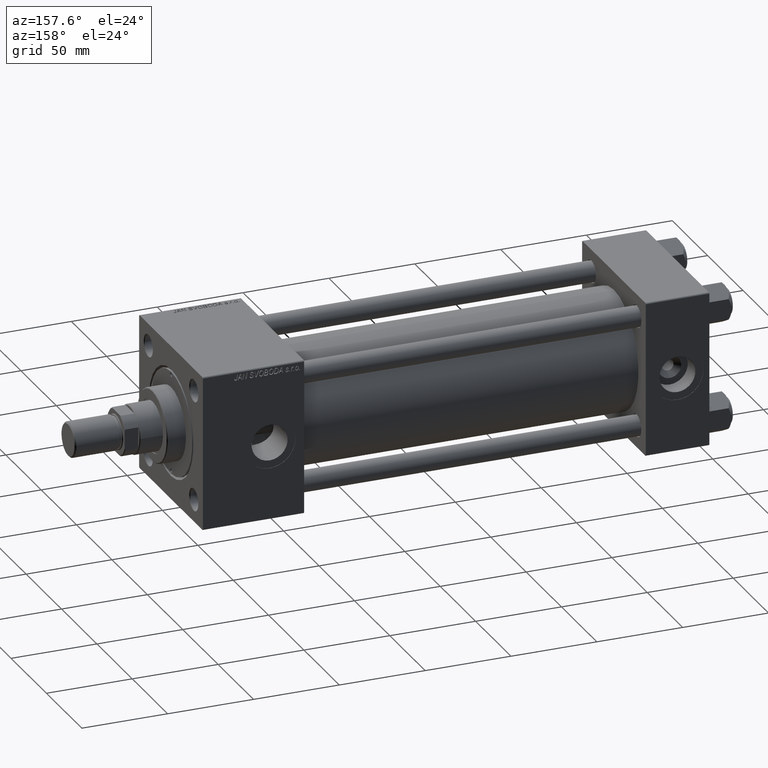
[diagram: clean part render]
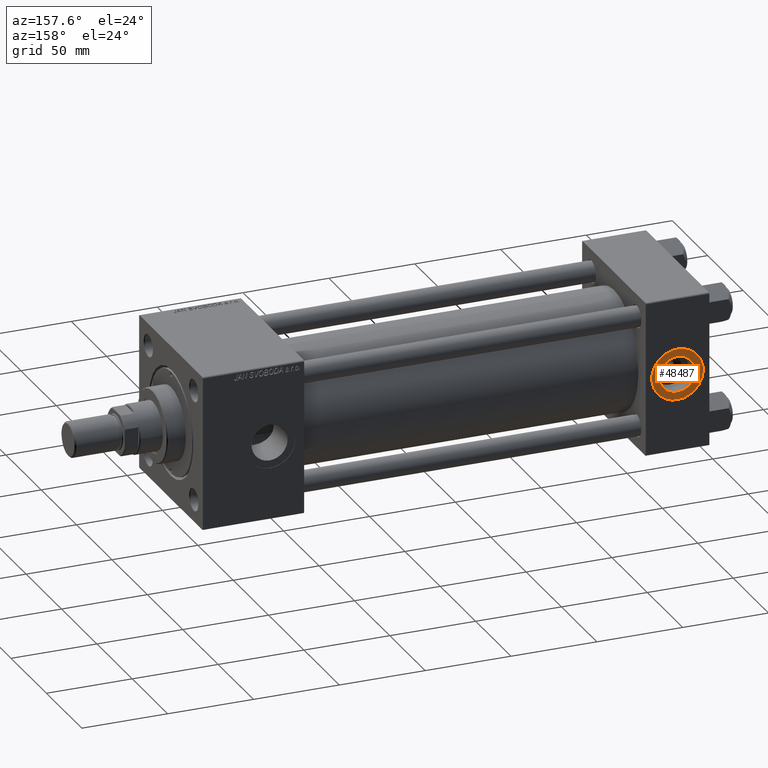
[diagram: same view with one face highlighted and labeled with its STEP entity id]
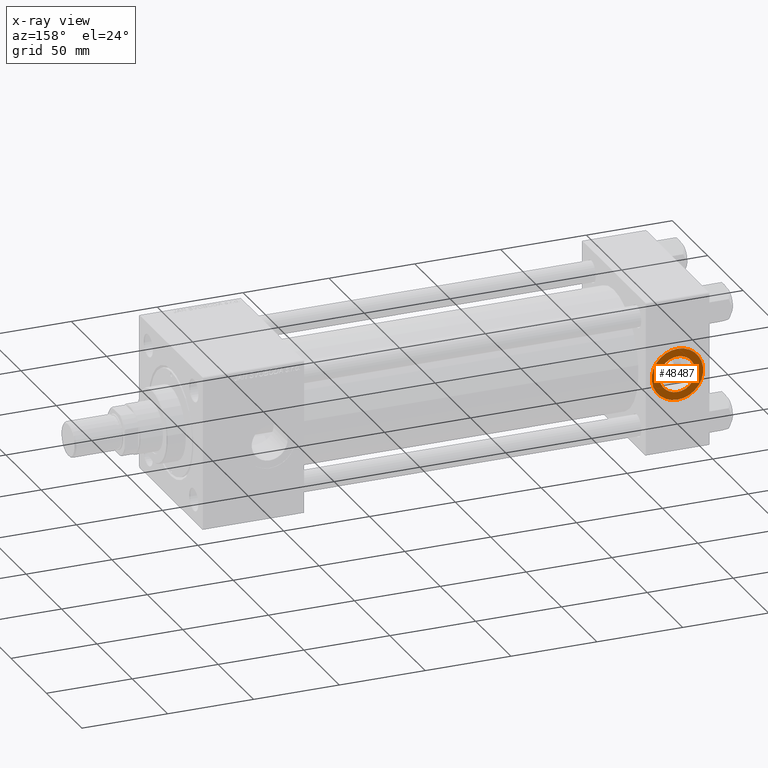
[diagram: x-ray of the same camera — body ghosted, the highlighted face saturated]
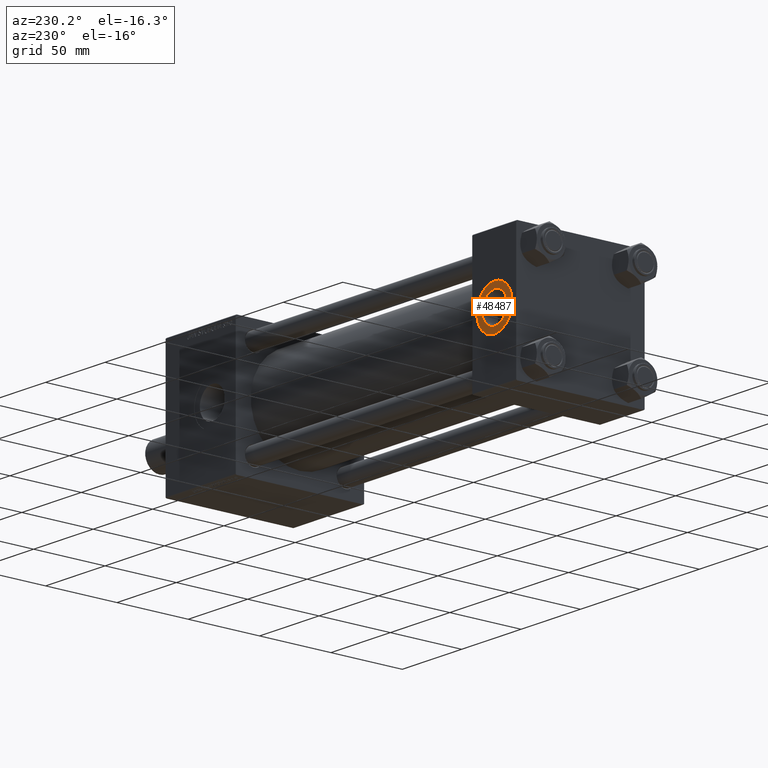
[diagram: same view with one face highlighted and labeled with its STEP entity id]
A machine part, auxiliary view. The second image highlights one B-rep face of the part: STEP entity #48487.
The next image is the same camera in x-ray: the body ghosted, the highlighted face saturated — about 0% of this face is hidden behind the body in this view.
A second angle (auxiliary view) of the same face is appended — the face is thin or edge-on in the first view.
In plain terms, the highlighted planar face has unit normal (0, 1, 0).
Its self-contained STEP definition (entity closure, byte-faithful):
#901 = CIRCLE ( 'NONE', #30829, 10.48000000000000043 ) ;
#1192 = VERTEX_POINT ( 'NONE', #6464 ) ;
#2116 = EDGE_LOOP ( 'NONE', ( #25638, #37780 ) ) ;
#2400 = EDGE_CURVE ( 'NONE', #25683, #1192, #15480, .T. ) ;
#3173 = DIRECTION ( 'NONE',  ( 0.000000000000000000, -0.000000000000000000, 1.000000000000000000 ) ) ;
#3529 = CIRCLE ( 'NONE', #24050, 15.00000000000000178 ) ;
#5730 = VERTEX_POINT ( 'NONE', #33772 ) ;
#6047 = DIRECTION ( 'NONE',  ( 0.000000000000000000, 0.000000000000000000, 1.000000000000000000 ) ) ;
#6464 = CARTESIAN_POINT ( 'NONE',  ( 18.50000000000000000, 44.79999999999998295, 10.48000000000000043 ) ) ;
#6577 = CARTESIAN_POINT ( 'NONE',  ( 18.50000000000000000, 44.79999999999998295, 0.000000000000000000 ) ) ;
#8567 = CIRCLE ( 'NONE', #25678, 15.00000000000000178 ) ;
#12679 = CARTESIAN_POINT ( 'NONE',  ( 18.50000000000000000, 44.79999999999998295, 0.000000000000000000 ) ) ;
#13208 = DIRECTION ( 'NONE',  ( 0.000000000000000000, 0.000000000000000000, 1.000000000000000000 ) ) ;
#13458 = DIRECTION ( 'NONE',  ( 0.000000000000000000, 1.000000000000000000, 0.000000000000000000 ) ) ;
#14186 = EDGE_LOOP ( 'NONE', ( #26658, #18646 ) ) ;
#14655 = CARTESIAN_POINT ( 'NONE',  ( 18.50000000000000000, 44.79999999999998295, 15.00000000000000178 ) ) ;
#14814 = CARTESIAN_POINT ( 'NONE',  ( 18.50000000000000000, 44.79999999999998295, 0.000000000000000000 ) ) ;
#14865 = VERTEX_POINT ( 'NONE', #14655 ) ;
#15480 = CIRCLE ( 'NONE', #50454, 10.48000000000000043 ) ;
#16007 = CARTESIAN_POINT ( 'NONE',  ( 18.50000000000000000, 44.79999999999998295, -10.48000000000000043 ) ) ;
#16296 = CARTESIAN_POINT ( 'NONE',  ( 18.50000000000000000, 44.79999999999998295, 0.000000000000000000 ) ) ;
#18646 = ORIENTED_EDGE ( 'NONE', *, *, #48628, .T. ) ;
#19204 = DIRECTION ( 'NONE',  ( 0.000000000000000000, 1.000000000000000000, 0.000000000000000000 ) ) ;
#19714 = CARTESIAN_POINT ( 'NONE',  ( 18.50000000000000000, 44.79999999999998295, 0.000000000000000000 ) ) ;
#24015 = EDGE_CURVE ( 'NONE', #1192, #25683, #901, .T. ) ;
#24050 = AXIS2_PLACEMENT_3D ( 'NONE', #14814, #31125, #40189 ) ;
#24991 = EDGE_CURVE ( 'NONE', #14865, #5730, #3529, .T. ) ;
#25638 = ORIENTED_EDGE ( 'NONE', *, *, #24015, .F. ) ;
#25678 = AXIS2_PLACEMENT_3D ( 'NONE', #6577, #19204, #6047 ) ;
#25683 = VERTEX_POINT ( 'NONE', #16007 ) ;
#26658 = ORIENTED_EDGE ( 'NONE', *, *, #24991, .T. ) ;
#30829 = AXIS2_PLACEMENT_3D ( 'NONE', #12679, #13458, #13208 ) ;
#31125 = DIRECTION ( 'NONE',  ( 0.000000000000000000, 1.000000000000000000, 0.000000000000000000 ) ) ;
#33772 = CARTESIAN_POINT ( 'NONE',  ( 18.50000000000000355, 44.79999999999998295, -15.00000000000000178 ) ) ;
#36011 = DIRECTION ( 'NONE',  ( 0.000000000000000000, 1.000000000000000000, 0.000000000000000000 ) ) ;
#36079 = FACE_BOUND ( 'NONE', #2116, .T. ) ;
#37780 = ORIENTED_EDGE ( 'NONE', *, *, #2400, .F. ) ;
#40189 = DIRECTION ( 'NONE',  ( 0.000000000000000000, 0.000000000000000000, 1.000000000000000000 ) ) ;
#43598 = AXIS2_PLACEMENT_3D ( 'NONE', #16296, #52388, #3173 ) ;
#44098 = PLANE ( 'NONE',  #43598 ) ;
#48487 = ADVANCED_FACE ( 'NONE', ( #36079, #49169 ), #44098, .T. ) ;
#48628 = EDGE_CURVE ( 'NONE', #5730, #14865, #8567, .T. ) ;
#49169 = FACE_OUTER_BOUND ( 'NONE', #14186, .T. ) ;
#50454 = AXIS2_PLACEMENT_3D ( 'NONE', #19714, #36011, #52317 ) ;
#52317 = DIRECTION ( 'NONE',  ( 0.000000000000000000, 0.000000000000000000, 1.000000000000000000 ) ) ;
#52388 = DIRECTION ( 'NONE',  ( 0.000000000000000000, 1.000000000000000000, 0.000000000000000000 ) ) ;